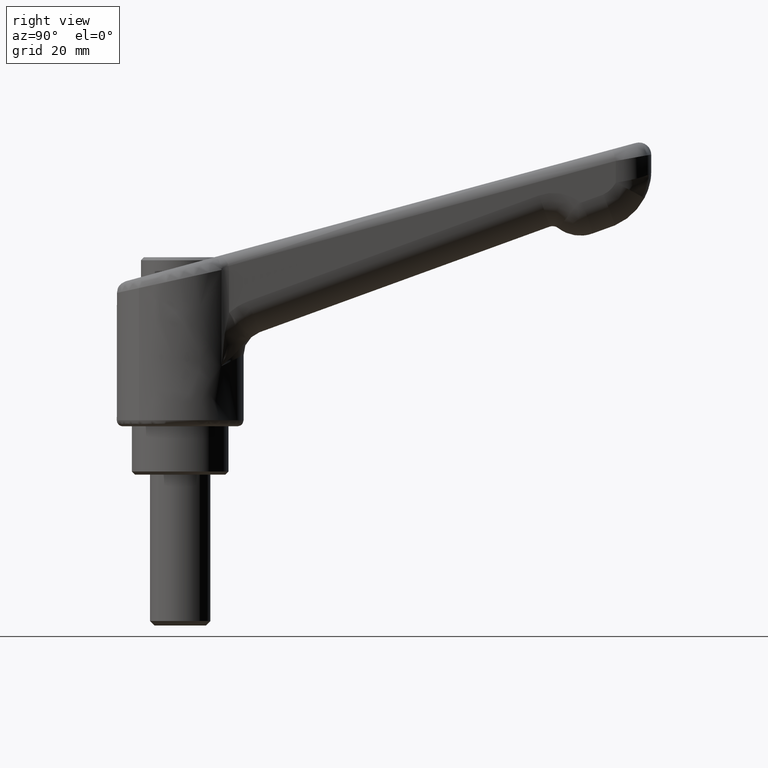
[diagram: clean part render]
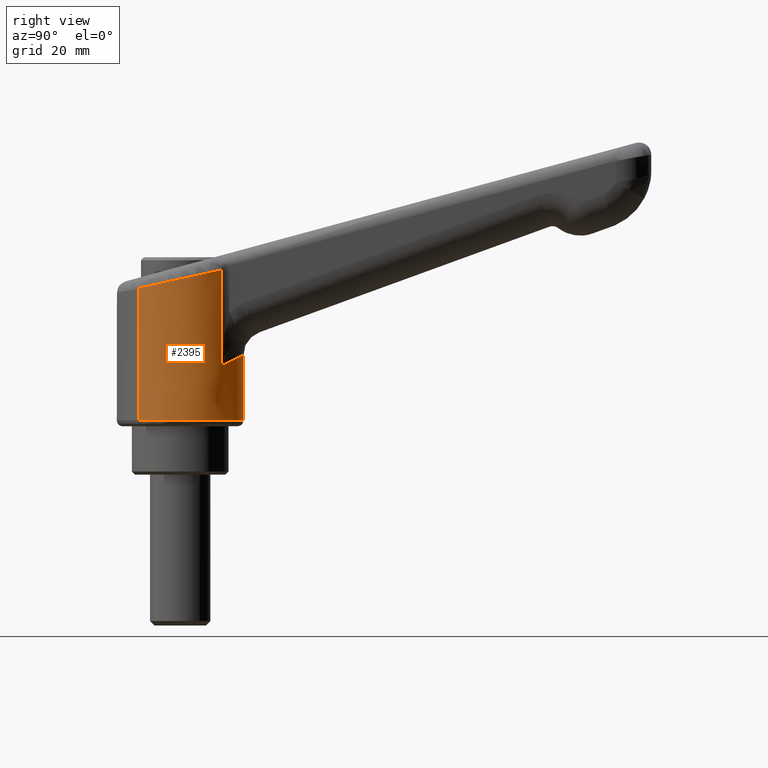
[diagram: same view with one face highlighted and labeled with its STEP entity id]
A machine part, right view. The second image highlights one B-rep face of the part: STEP entity #2395.
In plain terms, the highlighted face is a freeform B-spline surface patch.
Its self-contained STEP definition (entity closure, byte-faithful):
#2181=CARTESIAN_POINT('',(-6.823606710889278,-7.980500702030339,22.891820902044099));
#2182=VERTEX_POINT('',#2181);
#2183=CARTESIAN_POINT('',(-7.139260589506565,7.699412849981324,22.822535343776028));
#2184=VERTEX_POINT('',#2183);
#2202=CARTESIAN_POINT('',(-7.139242017781907,7.699430070554858,0.999999999611975));
#2203=VERTEX_POINT('',#2202);
#2204=CARTESIAN_POINT('',(-7.139260589506565,7.699412849981324,22.822535343776028));
#2205=CARTESIAN_POINT('',(-7.139242017781907,7.699430070554858,0.999999999611975));
#2206=QUASI_UNIFORM_CURVE('',1,(#2204,#2205),.UNSPECIFIED.,.F.,.U.);
#2207=EDGE_CURVE('',#2184,#2203,#2206,.T.);
#2229=CARTESIAN_POINT('',(-6.823606671035972,-7.980500736106310,0.999999999470824));
#2230=VERTEX_POINT('',#2229);
#2241=CARTESIAN_POINT('',(-6.823606710889278,-7.980500702030339,22.891820902044099));
#2242=CARTESIAN_POINT('',(-6.823606671035972,-7.980500736106310,0.999999999470824));
#2243=QUASI_UNIFORM_CURVE('',1,(#2241,#2242),.UNSPECIFIED.,.F.,.U.);
#2244=EDGE_CURVE('',#2182,#2230,#2243,.T.);
#2249=CARTESIAN_POINT('',(-7.296886392925575,7.553255450459672,26.514099755646566));
#2250=CARTESIAN_POINT('',(-7.218399734569469,7.626031643445757,26.514099755646562));
#2251=CARTESIAN_POINT('',(0.560188587154789,14.838672068174482,26.514099755646562));
#2252=CARTESIAN_POINT('',(7.699430327664633,7.139241740509844,26.514099755646559));
#2253=CARTESIAN_POINT('',(14.838672068174482,-0.560188587154789,26.514099755646562));
#2254=CARTESIAN_POINT('',(7.139241740509844,-7.699430327664633,26.514099755646559));
#2255=CARTESIAN_POINT('',(0.282962932629214,-14.056865847785954,26.514099755646555));
#2256=CARTESIAN_POINT('',(-6.909385665804487,-7.907156700911391,26.514099755646559));
#2257=CARTESIAN_POINT('',(-6.994525410334155,-7.834359246987829,26.514099755646559));
#2258=CARTESIAN_POINT('',(-7.296886392925575,7.553255450459672,0.362147504897312));
#2259=CARTESIAN_POINT('',(-7.218399734569469,7.626031643445757,0.362147504897312));
#2260=CARTESIAN_POINT('',(0.560188587154789,14.838672068174482,0.362147504897312));
#2261=CARTESIAN_POINT('',(7.699430327664633,7.139241740509844,0.362147504897312));
#2262=CARTESIAN_POINT('',(14.838672068174482,-0.560188587154789,0.362147504897312));
#2263=CARTESIAN_POINT('',(7.139241740509844,-7.699430327664633,0.362147504897312));
#2264=CARTESIAN_POINT('',(0.282962932629214,-14.056865847785954,0.362147504897312));
#2265=CARTESIAN_POINT('',(-6.909385665804487,-7.907156700911391,0.362147504897312));
#2266=CARTESIAN_POINT('',(-6.994525410334155,-7.834359246987829,0.362147504897312));
#2274=(BOUNDED_SURFACE()B_SPLINE_SURFACE(2,1,((#2249,#2258),(#2250,#2259),(#2251,#2260),(#2252,#2261),(#2253,#2262),(#2254,#2263),(#2255,#2264),(#2256,#2265),(#2257,#2266)),.UNSPECIFIED.,.F.,.F.,.U.)B_SPLINE_SURFACE_WITH_KNOTS((3,1,2,2,1,3),(2,2),(0.0,0.254026016788580,17.650995636458571,35.047965256128563,51.053177306224939,51.307173207502132),(0.0,26.151952250749250),.UNSPECIFIED.)GEOMETRIC_REPRESENTATION_ITEM()RATIONAL_B_SPLINE_SURFACE(((1.008553500908048,1.008553500908048),(1.004276750454024,1.004276750454024),(0.707106781186548,0.707106781186548),(1.0,1.0),(0.707106781186548,0.707106781186548),(1.0,1.0),(0.730538238691624,0.730538238691624),(0.960478162674393,0.960478162674393),(0.964070207158127,0.964070207158127)))REPRESENTATION_ITEM('')SURFACE());
#2275=CARTESIAN_POINT('',(6.841752169418649,-7.964949921515840,25.891804639626351));
#2276=VERTEX_POINT('',#2275);
#2277=CARTESIAN_POINT('',(6.841752169418646,-7.964949921515839,25.891804639626379));
#2278=CARTESIAN_POINT('',(0.015736291271141,-13.828377740019169,24.393275636013197));
#2279=CARTESIAN_POINT('',(-6.823606710889278,-7.980500702030339,22.891820902044103));
#2287=(BOUNDED_CURVE()B_SPLINE_CURVE(2,(#2277,#2278,#2279),.UNSPECIFIED.,.F.,.U.)B_SPLINE_CURVE_WITH_KNOTS((3,3),(0.0,0.308847889211876),.UNSPECIFIED.)CURVE()GEOMETRIC_REPRESENTATION_ITEM()RATIONAL_B_SPLINE_CURVE((1.0,0.744945961192656,0.962529331508985))REPRESENTATION_ITEM(''));
#2288=EDGE_CURVE('',#2276,#2182,#2287,.T.);
#2289=ORIENTED_EDGE('',*,*,#2288,.T.);
#2290=ORIENTED_EDGE('',*,*,#2244,.T.);
#2291=CARTESIAN_POINT('',(0.131912183239437,-10.499171356631580,1.0));
#2292=VERTEX_POINT('',#2291);
#2293=CARTESIAN_POINT('',(-6.823606671035972,-7.980500736106310,0.999999999470824));
#2294=CARTESIAN_POINT('',(-6.195271966397967,-8.518000241479895,0.999999999535789));
#2295=CARTESIAN_POINT('',(-5.107390253201968,-9.244874460041746,0.999999999636987));
#2296=CARTESIAN_POINT('',(-3.329092542282366,-10.004450948992460,0.999999999778676));
#2297=CARTESIAN_POINT('',(-1.680418723092213,-10.418694636674090,0.999999999893994));
#2298=CARTESIAN_POINT('',(-0.458644932361880,-10.506637272842189,0.999999999967321));
#2299=CARTESIAN_POINT('',(0.131912183239437,-10.499171356631580,1.0));
#2300=B_SPLINE_CURVE_WITH_KNOTS('',3,(#2293,#2294,#2295,#2296,#2297,#2298,#2299),.UNSPECIFIED.,.F.,.U.,(4,1,1,1,4),(0.000000010045590,2.480546349390412,3.897994978437403,5.787941479253051,7.559758750483608),.UNSPECIFIED.);
#2301=EDGE_CURVE('',#2230,#2292,#2300,.T.);
#2302=ORIENTED_EDGE('',*,*,#2301,.T.);
#2303=CARTESIAN_POINT('',(10.500000000000000,0.0,1.0));
#2304=VERTEX_POINT('',#2303);
#2305=CARTESIAN_POINT('',(0.131912183239437,-10.499171356631580,1.0));
#2306=CARTESIAN_POINT('',(0.770978699753913,-10.491204702229030,1.000000000035383));
#2307=CARTESIAN_POINT('',(2.005064396477851,-10.362463054739200,1.000000000097436));
#2308=CARTESIAN_POINT('',(3.854277892086205,-9.830015854068313,1.000000000171619));
#2309=CARTESIAN_POINT('',(5.539631423907890,-8.988713904803721,1.000000000219529));
#2310=CARTESIAN_POINT('',(6.939991891386305,-7.933752527671269,1.000000000239625));
#2311=CARTESIAN_POINT('',(8.252207693225497,-6.588886511582039,1.000000000238734));
#2312=CARTESIAN_POINT('',(9.302865033040188,-5.021096489038096,1.000000000210853));
#2313=CARTESIAN_POINT('',(10.017340644079500,-3.280423661580815,1.000000000154524));
#2314=CARTESIAN_POINT('',(10.408974426865390,-1.661685552564379,1.000000000086914));
#2315=CARTESIAN_POINT('',(10.500050231748761,-0.596507544304580,1.000000000032996));
#2316=CARTESIAN_POINT('',(10.500000000000000,0.0,1.0));
#2317=B_SPLINE_CURVE_WITH_KNOTS('',3,(#2305,#2306,#2307,#2308,#2309,#2310,#2311,#2312,#2313,#2314,#2315,#2316),.UNSPECIFIED.,.F.,.U.,(4,1,1,1,1,1,1,1,1,4),(0.000000011078143,1.917347357661868,3.706912762955957,5.752122616890112,7.541656325156962,8.947711353267774,11.376380424790259,13.165939782798841,14.572021672446301,16.361546803492761),.UNSPECIFIED.);
#2318=EDGE_CURVE('',#2292,#2304,#2317,.T.);
#2319=ORIENTED_EDGE('',*,*,#2318,.T.);
#2320=CARTESIAN_POINT('',(-0.263866002237175,10.496683987472579,0.999999998818028));
#2321=VERTEX_POINT('',#2320);
#2322=CARTESIAN_POINT('',(10.500000000000000,0.0,1.0));
#2323=CARTESIAN_POINT('',(10.500254519666729,0.872798148899244,1.000000000069988));
#2324=CARTESIAN_POINT('',(10.324827432811560,2.269108288749608,1.000000000148909));
#2325=CARTESIAN_POINT('',(9.767199499809141,3.928359819008225,1.000000000177062));
#2326=CARTESIAN_POINT('',(9.122588932268773,5.266798734347767,1.000000000163163));
#2327=CARTESIAN_POINT('',(8.298917312028433,6.507675233308455,1.000000000107776));
#2328=CARTESIAN_POINT('',(7.227244296011137,7.662391952833516,0.999999999998902));
#2329=CARTESIAN_POINT('',(5.975001989237819,8.686631496978601,0.999999999845598));
#2330=CARTESIAN_POINT('',(4.499915881496394,9.550379312282201,0.999999999637566));
#2331=CARTESIAN_POINT('',(2.935589097989994,10.119406217293180,0.999999999389152));
#2332=CARTESIAN_POINT('',(1.352438657595753,10.449419627683110,0.999999999118022));
#2333=CARTESIAN_POINT('',(0.346880412143083,10.512097653700140,0.999999998934059));
#2334=CARTESIAN_POINT('',(-0.263866002237175,10.496683987472579,0.999999998818028));
#2335=B_SPLINE_CURVE_WITH_KNOTS('',3,(#2322,#2323,#2324,#2325,#2326,#2327,#2328,#2329,#2330,#2331,#2332,#2333,#2334),.UNSPECIFIED.,.F.,.U.,(4,1,1,1,1,1,1,1,1,1,4),(0.000000020983066,2.618327826568883,4.189341233167387,5.236685077608231,7.069532976811420,8.640508790556979,9.949670715320716,11.913436697196300,13.746279603412781,14.924539871653590,16.757363750345000),.UNSPECIFIED.);
#2336=EDGE_CURVE('',#2304,#2321,#2335,.T.);
#2337=ORIENTED_EDGE('',*,*,#2336,.T.);
#2338=CARTESIAN_POINT('',(-0.263866002237175,10.496683987472579,0.999999998818028));
#2339=CARTESIAN_POINT('',(-1.093410479651432,10.476014746735119,0.999999998913823));
#2340=CARTESIAN_POINT('',(-2.392934424403132,10.287712791081271,0.999999999063888));
#2341=CARTESIAN_POINT('',(-4.004031850780152,9.735864755797241,0.999999999249928));
#2342=CARTESIAN_POINT('',(-5.533375251029011,8.989388952021779,0.999999999426535));
#2343=CARTESIAN_POINT('',(-6.530888184330783,8.263769124686567,0.999999999541724));
#2344=CARTESIAN_POINT('',(-7.139242017781907,7.699430070554858,0.999999999611975));
#2345=B_SPLINE_CURVE_WITH_KNOTS('',3,(#2338,#2339,#2340,#2341,#2342,#2343,#2344),.UNSPECIFIED.,.F.,.U.,(4,1,1,1,4),(0.000000010222205,2.489360342540488,3.911845475031043,5.097260100051289,7.586620432369330),.UNSPECIFIED.);
#2346=EDGE_CURVE('',#2321,#2203,#2345,.T.);
#2347=ORIENTED_EDGE('',*,*,#2346,.T.);
#2348=ORIENTED_EDGE('',*,*,#2207,.F.);
#2349=CARTESIAN_POINT('',(6.841752169418649,7.964949921515840,25.891804639626351));
#2350=VERTEX_POINT('',#2349);
#2351=CARTESIAN_POINT('',(-7.139260589506565,7.699412849981324,22.822535343776028));
#2352=CARTESIAN_POINT('',(-0.267254429061213,14.071460713945985,24.331155404248406));
#2353=CARTESIAN_POINT('',(6.841752169418649,7.964949921515840,25.891804639626351));
#2361=(BOUNDED_CURVE()B_SPLINE_CURVE(2,(#2351,#2352,#2353),.UNSPECIFIED.,.F.,.U.)B_SPLINE_CURVE_WITH_KNOTS((3,3),(0.681713560675306,1.0),.UNSPECIFIED.)CURVE()GEOMETRIC_REPRESENTATION_ITEM()RATIONAL_B_SPLINE_CURVE((0.976269667936728,0.737151378775716,1.0))REPRESENTATION_ITEM(''));
#2362=EDGE_CURVE('',#2184,#2350,#2361,.T.);
#2363=ORIENTED_EDGE('',*,*,#2362,.T.);
#2364=CARTESIAN_POINT('',(6.841752169418649,7.964949921515840,9.975054710907001));
#2365=VERTEX_POINT('',#2364);
#2366=CARTESIAN_POINT('',(6.841752169418649,7.964949921515840,25.891804639626351));
#2367=CARTESIAN_POINT('',(6.841752169418649,7.964949921515840,9.975054710907001));
#2368=QUASI_UNIFORM_CURVE('',1,(#2366,#2367),.UNSPECIFIED.,.F.,.U.);
#2369=EDGE_CURVE('',#2350,#2365,#2368,.T.);
#2370=ORIENTED_EDGE('',*,*,#2369,.T.);
#2371=CARTESIAN_POINT('',(6.841752169418649,-7.964949921515840,9.975054710907001));
#2372=VERTEX_POINT('',#2371);
#2373=CARTESIAN_POINT('',(6.841752169418649,7.964949921515842,9.975054710906992));
#2374=CARTESIAN_POINT('',(10.500000000000000,4.822579250290366,11.813782760400999));
#2375=CARTESIAN_POINT('',(10.500000000000000,1.285837E-015,11.813782760401001));
#2376=CARTESIAN_POINT('',(10.500000000000000,-4.822579250290365,11.813782760400999));
#2377=CARTESIAN_POINT('',(6.841752169418655,-7.964949921515839,9.975054710906996));
#2385=(BOUNDED_CURVE()B_SPLINE_CURVE(2,(#2373,#2374,#2375,#2376,#2377),.UNSPECIFIED.,.F.,.U.)B_SPLINE_CURVE_WITH_KNOTS((3,2,3),(0.0,0.500000000000000,1.0),.UNSPECIFIED.)CURVE()GEOMETRIC_REPRESENTATION_ITEM()RATIONAL_B_SPLINE_CURVE((1.0,0.908734131830246,1.0,0.908734131830246,1.0))REPRESENTATION_ITEM(''));
#2386=EDGE_CURVE('',#2365,#2372,#2385,.T.);
#2387=ORIENTED_EDGE('',*,*,#2386,.T.);
#2388=CARTESIAN_POINT('',(6.841752169418649,-7.964949921515840,9.975054710907001));
#2389=CARTESIAN_POINT('',(6.841752169418649,-7.964949921515840,25.891804639626351));
#2390=QUASI_UNIFORM_CURVE('',1,(#2388,#2389),.UNSPECIFIED.,.F.,.U.);
#2391=EDGE_CURVE('',#2372,#2276,#2390,.T.);
#2392=ORIENTED_EDGE('',*,*,#2391,.T.);
#2393=EDGE_LOOP('',(#2289,#2290,#2302,#2319,#2337,#2347,#2348,#2363,#2370,#2387,#2392));
#2394=FACE_OUTER_BOUND('',#2393,.T.);
#2395=ADVANCED_FACE('',(#2394),#2274,.T.);